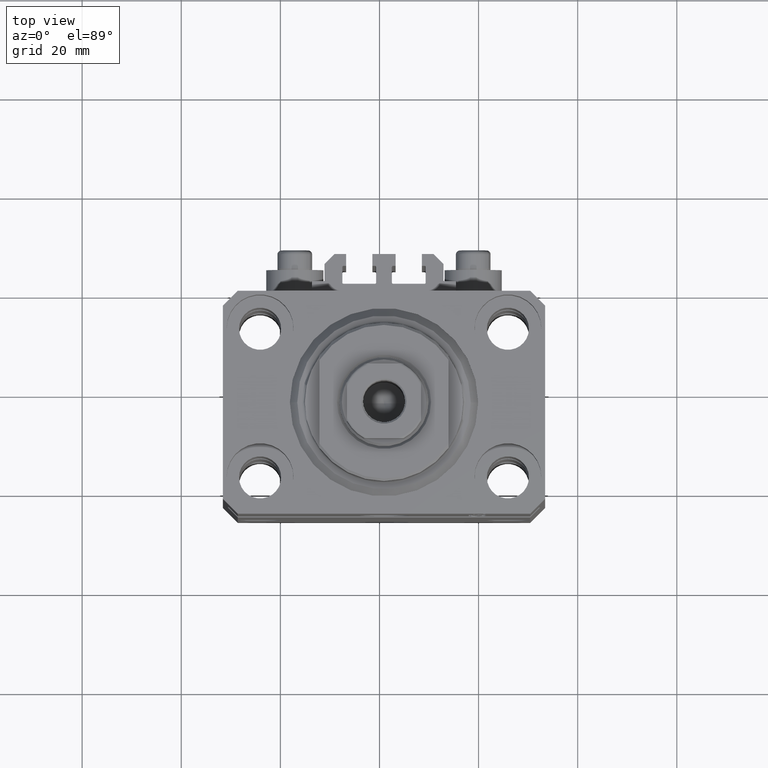
[diagram: clean part render]
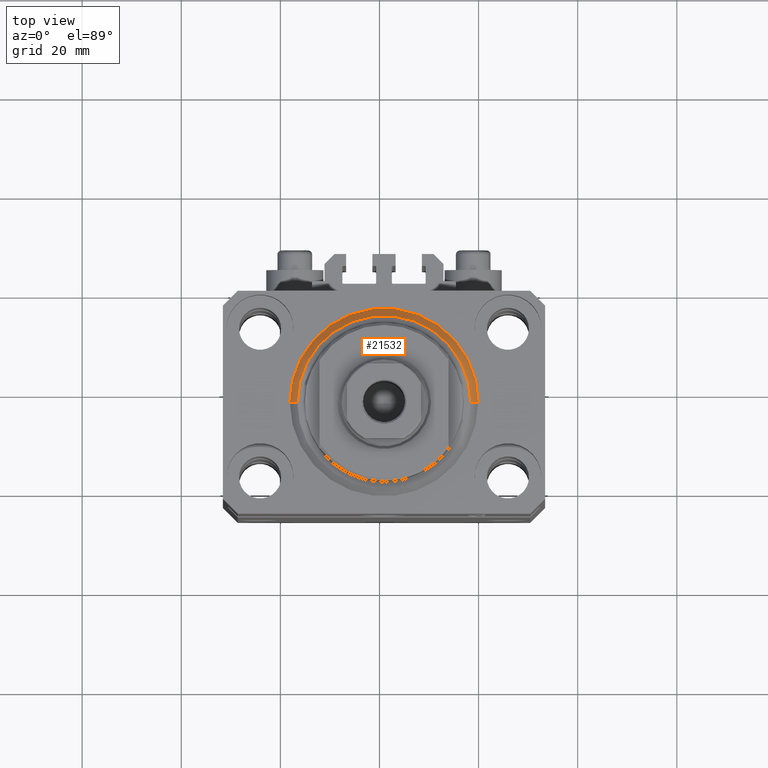
[diagram: same view with one face highlighted and labeled with its STEP entity id]
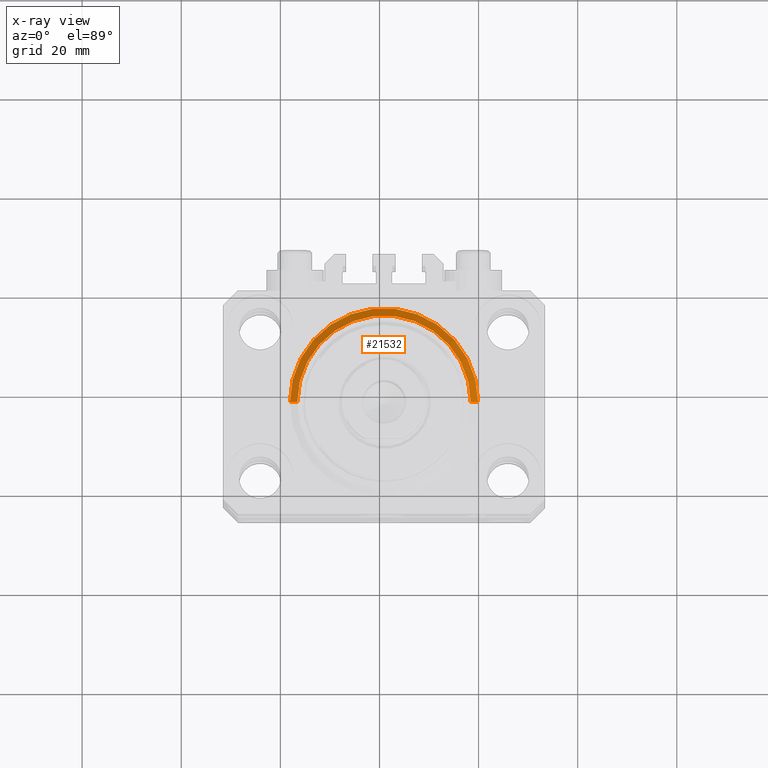
[diagram: x-ray of the same camera — body ghosted, the highlighted face saturated]
A machine part, top view. The second image highlights one B-rep face of the part: STEP entity #21532.
The next image is the same camera in x-ray: the body ghosted, the highlighted face saturated — about 0% of this face is hidden behind the body in this view.
In plain terms, the highlighted conical surface has half-angle 45 deg.
Its self-contained STEP definition (entity closure, byte-faithful):
#31 = CARTESIAN_POINT ( 'NONE',  ( 19.00000000000000000, 0.000000000000000000, 1.500000000000004885 ) ) ;
#6004 = VERTEX_POINT ( 'NONE', #37601 ) ;
#6248 = CARTESIAN_POINT ( 'NONE',  ( 0.000000000000000000, 0.000000000000000000, 1.500000000000004885 ) ) ;
#6794 = ORIENTED_EDGE ( 'NONE', *, *, #6970, .F. ) ;
#6970 = EDGE_CURVE ( 'NONE', #41380, #12134, #33860, .T. ) ;
#7333 = CARTESIAN_POINT ( 'NONE',  ( -17.49999999999999289, 2.234980408443919215E-15, 0.000000000000000000 ) ) ;
#8415 = DIRECTION ( 'NONE',  ( -0.000000000000000000, -0.000000000000000000, -1.000000000000000000 ) ) ;
#9129 = VECTOR ( 'NONE', #29308, 1000.000000000000000 ) ;
#9164 = CONICAL_SURFACE ( 'NONE', #30701, 19.00000000000000000, 0.7853981633974492782 ) ;
#10921 = LINE ( 'NONE', #31, #47558 ) ;
#12134 = VERTEX_POINT ( 'NONE', #38523 ) ;
#14350 = ORIENTED_EDGE ( 'NONE', *, *, #34350, .F. ) ;
#14763 = DIRECTION ( 'NONE',  ( 0.7071067811865483499, 0.000000000000000000, 0.7071067811865467956 ) ) ;
#15634 = CIRCLE ( 'NONE', #30248, 17.49999999999999289 ) ;
#15894 = CARTESIAN_POINT ( 'NONE',  ( 0.000000000000000000, 0.000000000000000000, 0.000000000000000000 ) ) ;
#19214 = EDGE_CURVE ( 'NONE', #6004, #41380, #10921, .T. ) ;
#19217 = EDGE_LOOP ( 'NONE', ( #14350, #43643, #6794, #46087 ) ) ;
#21532 = ADVANCED_FACE ( 'NONE', ( #41032 ), #9164, .T. ) ;
#23328 = EDGE_CURVE ( 'NONE', #40104, #12134, #47618, .T. ) ;
#25863 = DIRECTION ( 'NONE',  ( 1.000000000000000000, 0.000000000000000000, 0.000000000000000000 ) ) ;
#29308 = DIRECTION ( 'NONE',  ( -0.7071067811865483499, 8.659560562354943952E-17, 0.7071067811865467956 ) ) ;
#30248 = AXIS2_PLACEMENT_3D ( 'NONE', #15894, #8415, #41443 ) ;
#30417 = DIRECTION ( 'NONE',  ( -0.000000000000000000, -0.000000000000000000, 1.000000000000000000 ) ) ;
#30701 = AXIS2_PLACEMENT_3D ( 'NONE', #37171, #30417, #25863 ) ;
#33860 = CIRCLE ( 'NONE', #46173, 19.00000000000000000 ) ;
#34350 = EDGE_CURVE ( 'NONE', #40104, #6004, #15634, .T. ) ;
#36450 = CARTESIAN_POINT ( 'NONE',  ( 19.00000000000000000, 2.326828918379970970E-15, 1.500000000000004885 ) ) ;
#37171 = CARTESIAN_POINT ( 'NONE',  ( 0.000000000000000000, 0.000000000000000000, 1.500000000000004885 ) ) ;
#37601 = CARTESIAN_POINT ( 'NONE',  ( 17.49999999999999289, 0.000000000000000000, 0.000000000000000000 ) ) ;
#38523 = CARTESIAN_POINT ( 'NONE',  ( -19.00000000000000000, 0.000000000000000000, 1.500000000000004885 ) ) ;
#40104 = VERTEX_POINT ( 'NONE', #7333 ) ;
#41032 = FACE_OUTER_BOUND ( 'NONE', #19217, .T. ) ;
#41380 = VERTEX_POINT ( 'NONE', #36450 ) ;
#41443 = DIRECTION ( 'NONE',  ( 1.000000000000000000, 0.000000000000000000, 0.000000000000000000 ) ) ;
#43591 = DIRECTION ( 'NONE',  ( -0.000000000000000000, -0.000000000000000000, 1.000000000000000000 ) ) ;
#43643 = ORIENTED_EDGE ( 'NONE', *, *, #23328, .T. ) ;
#43844 = DIRECTION ( 'NONE',  ( 1.000000000000000000, 0.000000000000000000, 0.000000000000000000 ) ) ;
#44732 = CARTESIAN_POINT ( 'NONE',  ( -19.00000000000000000, 2.326828918379970970E-15, 1.500000000000004885 ) ) ;
#46087 = ORIENTED_EDGE ( 'NONE', *, *, #19214, .F. ) ;
#46173 = AXIS2_PLACEMENT_3D ( 'NONE', #6248, #43591, #43844 ) ;
#47558 = VECTOR ( 'NONE', #14763, 1000.000000000000000 ) ;
#47618 = LINE ( 'NONE', #44732, #9129 ) ;